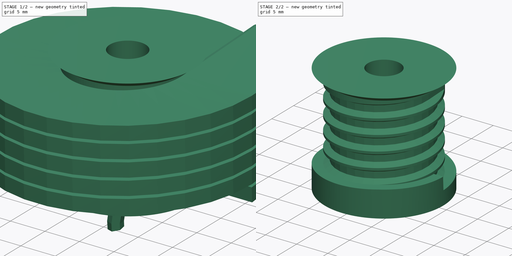
[diagram: build sequence overview — one tinted view per stage of 2, left to right]
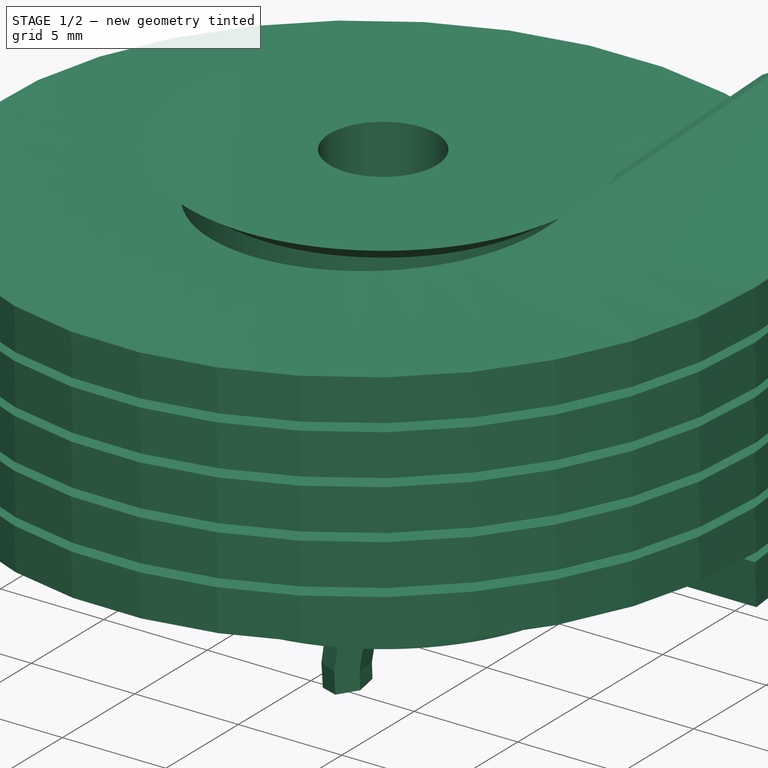
[diagram: stage 1 of 2 — iso view after this stage's code; geometry added in this stage tinted green]
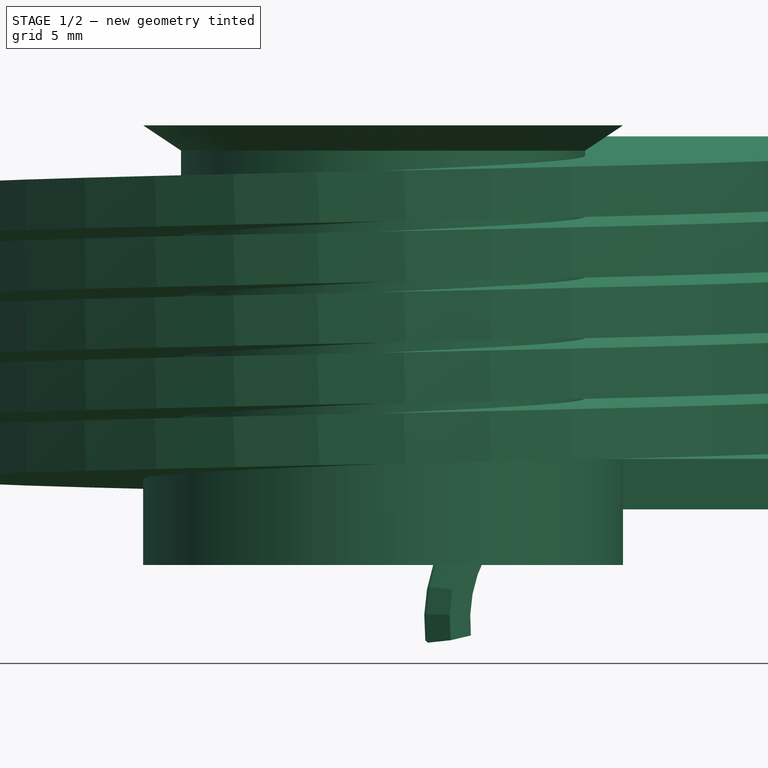
[diagram: stage 1 of 2 — front view after this stage's code; geometry added in this stage tinted green]
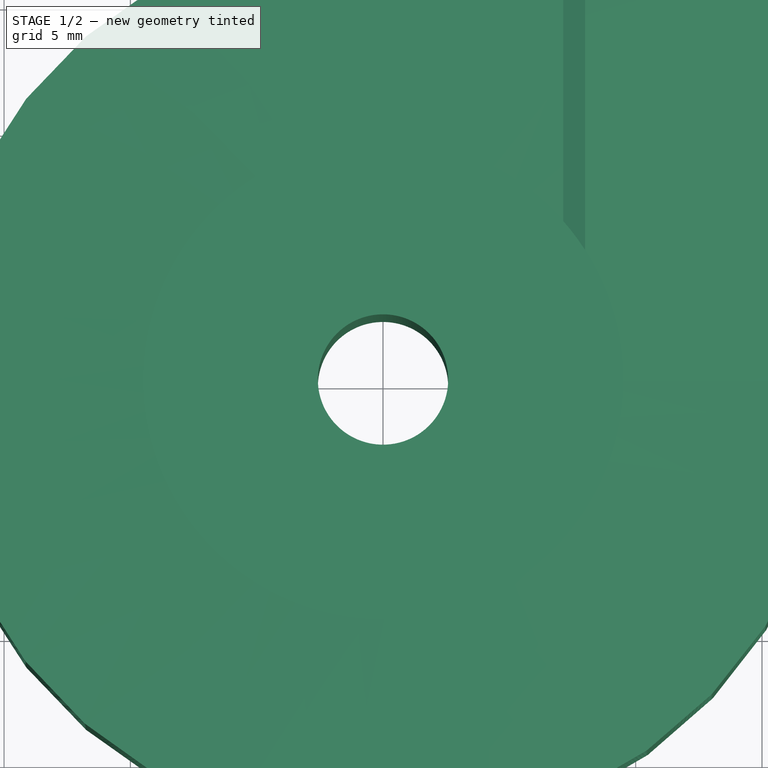
[diagram: stage 1 of 2 — top view after this stage's code; geometry added in this stage tinted green]
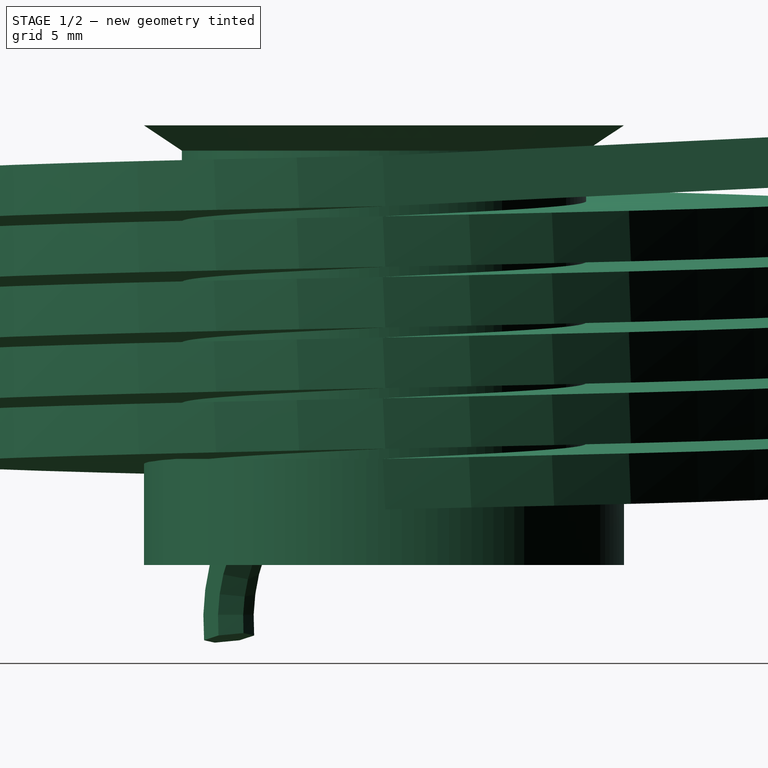
[diagram: stage 1 of 2 — right view after this stage's code; geometry added in this stage tinted green]
FCSTD DOCUMENT  (FreeCAD 0.17R13346 (Git))
Label: pulley
License: All rights reserved
LicenseURL: http://en.wikipedia.org/wiki/All_rights_reserved
objects: Spreadsheet::Sheet×1, Part::FeaturePython×1, Sketcher::SketchObject×1, PartDesign::Revolution×1, Part::Cut×1
note: 5 computed .brp shape members not serialized (recipe doc carries the construction recipe); baked Part::Feature solids carry a one-line shape summary decoded from their .brp

FEATURE [Spreadsheet::Sheet] Spreadsheet
  cells = A1=Pulley; A2=diameter; B2(p_diam)=16; C2(p_radius)==B2 * 0.5; A3=pitch; B3(pitch)==rod_diam * 1.2; A4=Rod Thread; A5=diameter; B5(rod_diam)=2; C5(rod_radius)==B5 * 0.5; A6=wire length; B6(rod_len)=250; A8=Change purple; B8=values; A10=nb turn; B10(p_turn)==ceil(B6 / B2 / pi)
FEATURE [Part::FeaturePython] PythonObject  # WARN: FeaturePython — macro-defined, semantics opaque (R4)
  height = 12
  pitch = 2.4
  precision = 33
  radius = 8
  rope_radius = 1
  expr: pitch = Spreadsheet.pitch
  expr: height = Spreadsheet.p_turn * Spreadsheet.pitch
  expr: radius = Spreadsheet.p_radius
  expr: rope_radius = Spreadsheet.rod_radius
FEATURE [Sketcher::SketchObject] Sketch001
  MapMode = 5
  Placement = pos=(0,0,0) rot=(0.57735,0.57735,0.57735;2.0944rad)
  expr: Constraints[3] = Spreadsheet.pitch * (Spreadsheet.p_turn + 0.5)
  expr: Constraints[23] = Spreadsheet.p_radius
  expr: Constraints[17] = Spreadsheet.pitch
  expr: Constraints[14] = Spreadsheet.rod_radius
  sketch-geometry (10):
    g0: LineSegment StartX=-9.5 StartY=-3.2 StartZ=0 EndX=-2.58 EndY=-3.2 EndZ=0
    g1: LineSegment StartX=-2.58 StartY=14.2 StartZ=0 EndX=-9.5 EndY=14.2 EndZ=0
    g2: LineSegment StartX=-9.5 StartY=14.2 StartZ=0 EndX=-8 EndY=13.2 EndZ=0
    g3: LineSegment StartX=-8 StartY=13.2 StartZ=0 EndX=-8 EndY=1 EndZ=0
    g4: LineSegment StartX=-9.5 StartY=-3.2 StartZ=0 EndX=-9.5 EndY=1 EndZ=0
    g5: LineSegment StartX=-8 StartY=1 StartZ=0 EndX=-9.5 EndY=1 EndZ=0
    g6: LineSegment [constr] StartX=-9.5 StartY=14.2 StartZ=0 EndX=-9.5 EndY=1 EndZ=0
    g7: LineSegment [constr] StartX=-8 StartY=1 StartZ=0 EndX=-8 EndY=-1.4 EndZ=0
    g8: LineSegment [constr] StartX=-8 StartY=-1.4 StartZ=0 EndX=-8 EndY=-3.2 EndZ=0
    g9: LineSegment StartX=-2.58 StartY=14.2 StartZ=0 EndX=-2.58 EndY=-3.2 EndZ=0
  constraints (29):
    c: Horizontal(g0)
    c: Horizontal(g1)
    c: Coincident(g2,g1)
    c: DistanceY(g-1,g2) = 13.2
    c: Coincident(g3,g2)
    c: Vertical(g3)
    c: Coincident(g4,g0)
    c: Vertical(g4)
    c: Coincident(g5,g3)
    c: Coincident(g5,g4)
    c: Coincident(g6,g1)
    c: Coincident(g6,g4)
    c: Vertical(g6)
    c: Horizontal(g5)
    c: DistanceY(g-1,g3) = 1
    c: Coincident(g7,g3)
    c: Vertical(g7)
    c: DistanceY(g7,g7) = 2.4
    c: Coincident(g8,g7)
    c: PointOnObject(g8,g0)
    c: Vertical(g8)
    c: DistanceY(g2,g1) = 1
    c: DistanceY(g8,g8) = 1.8
    c: DistanceX(g3,g-1) = 8
    c: Coincident(g9,g1)
    c: Coincident(g9,g0)
    c: Vertical(g9)
    c: DistanceX(g1,g-1) = 2.58
    c: DistanceX(g1,g2) = 1.5
FEATURE [PartDesign::Revolution] Revolution
  Angle = 360
  Axis = (0,0,1)
  Base = (0,0,0)
  Placement = pos=(0,0,0) rot=(0.57735,0.57735,0.57735;2.0944rad)
  Profile = -> Sketch001
  ReferenceAxis = -> Sketch001 [V_Axis]
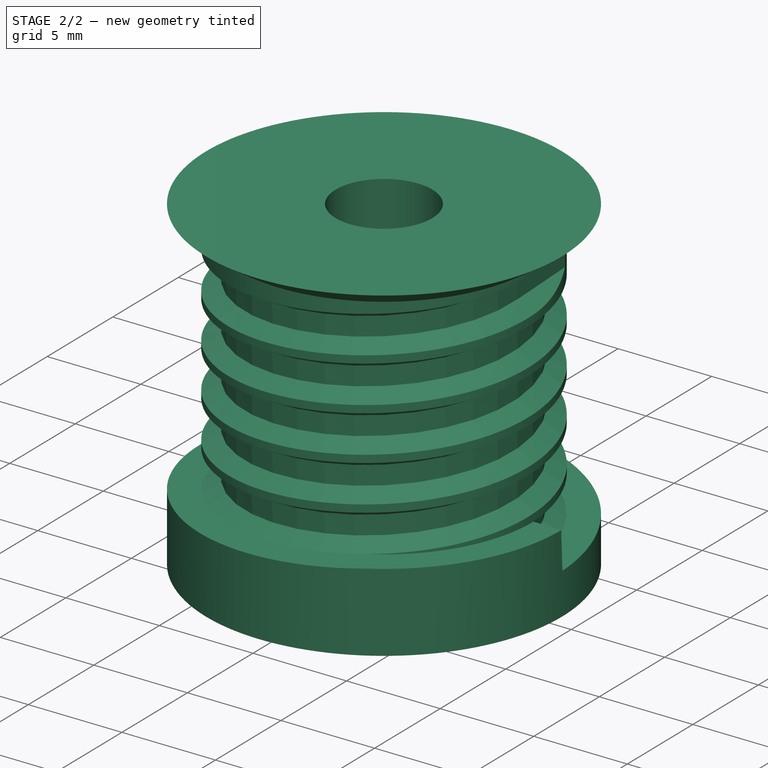
[diagram: stage 2 of 2 — iso view after this stage's code; geometry added in this stage tinted green]
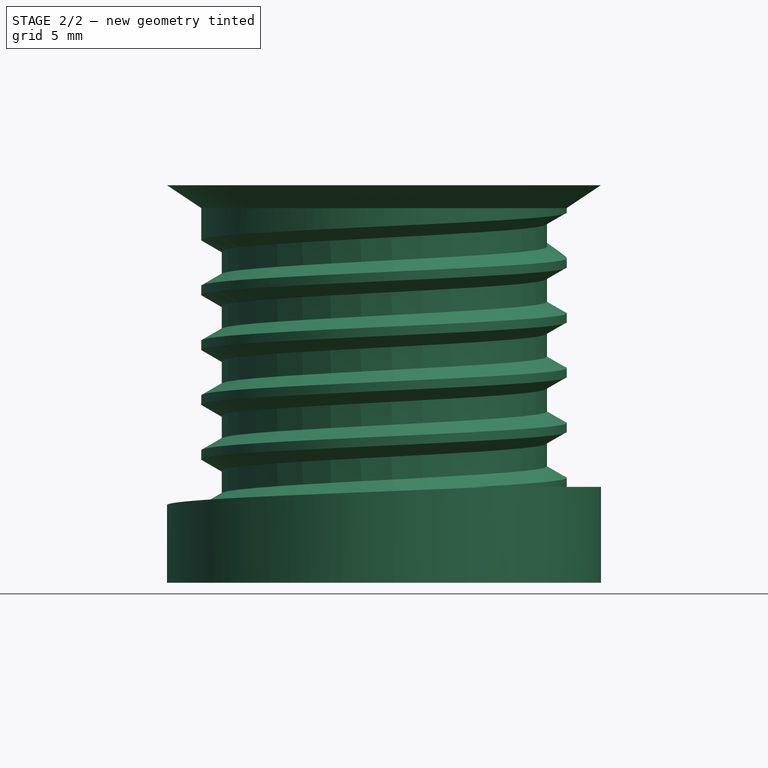
[diagram: stage 2 of 2 — front view after this stage's code; geometry added in this stage tinted green]
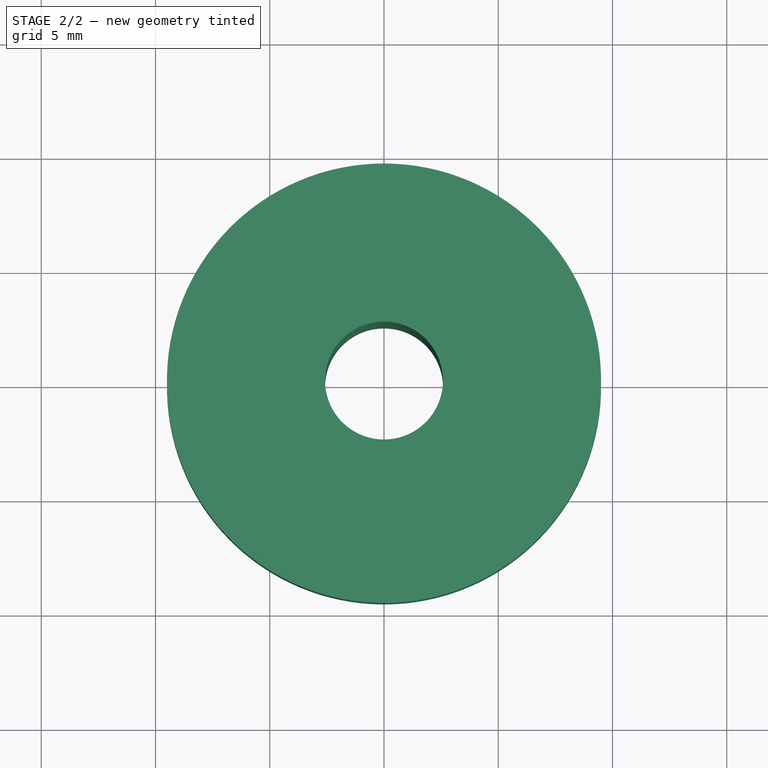
[diagram: stage 2 of 2 — top view after this stage's code; geometry added in this stage tinted green]
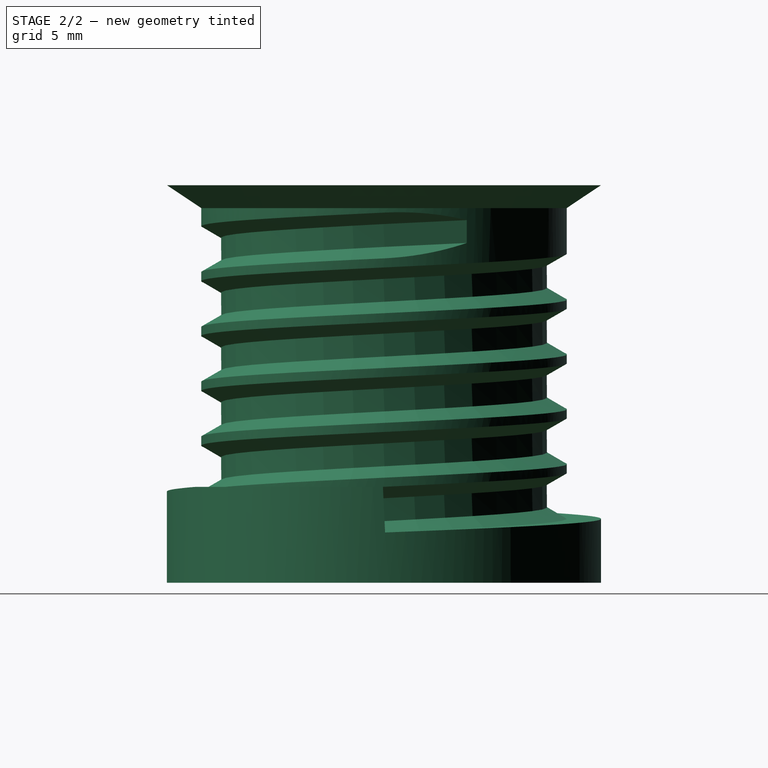
[diagram: stage 2 of 2 — right view after this stage's code; geometry added in this stage tinted green]
FEATURE [Part::Cut] Cut
  Base = -> Revolution
  Tool = -> PythonObject
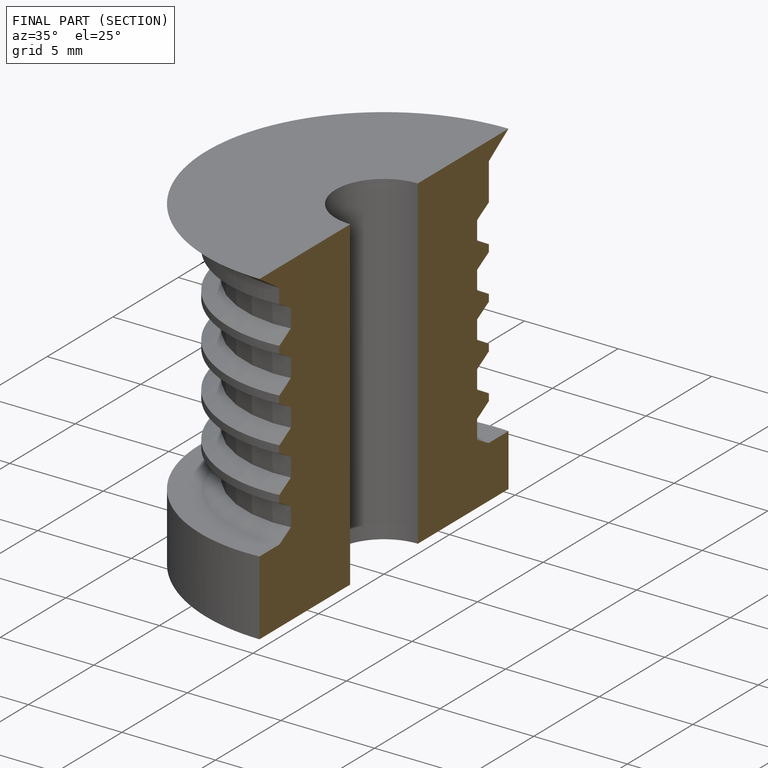
[diagram: finished part — half-section view (interior)]
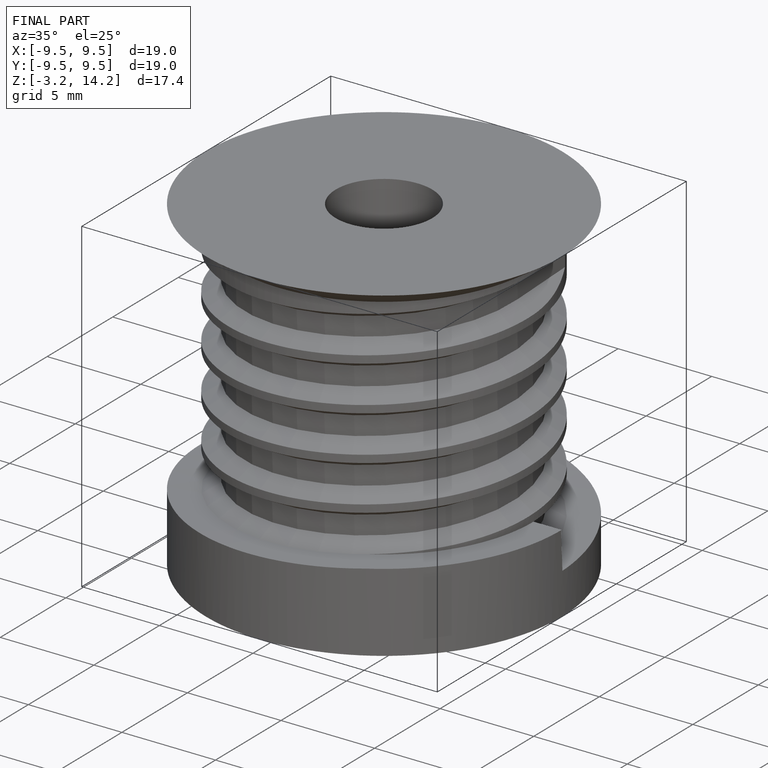
[diagram: finished part — iso view with bounding-box wireframe]
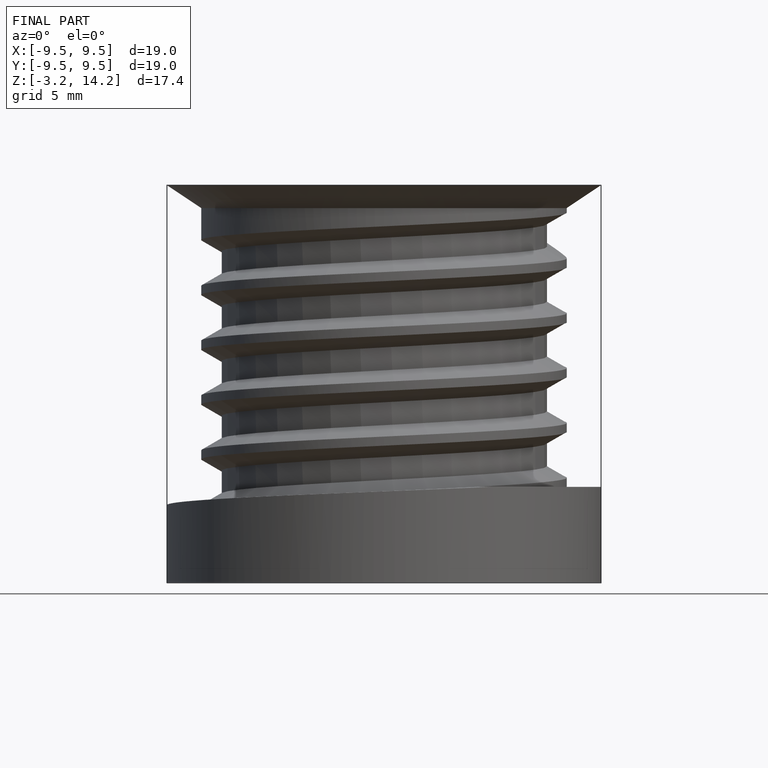
[diagram: finished part — front view with bounding-box wireframe]
